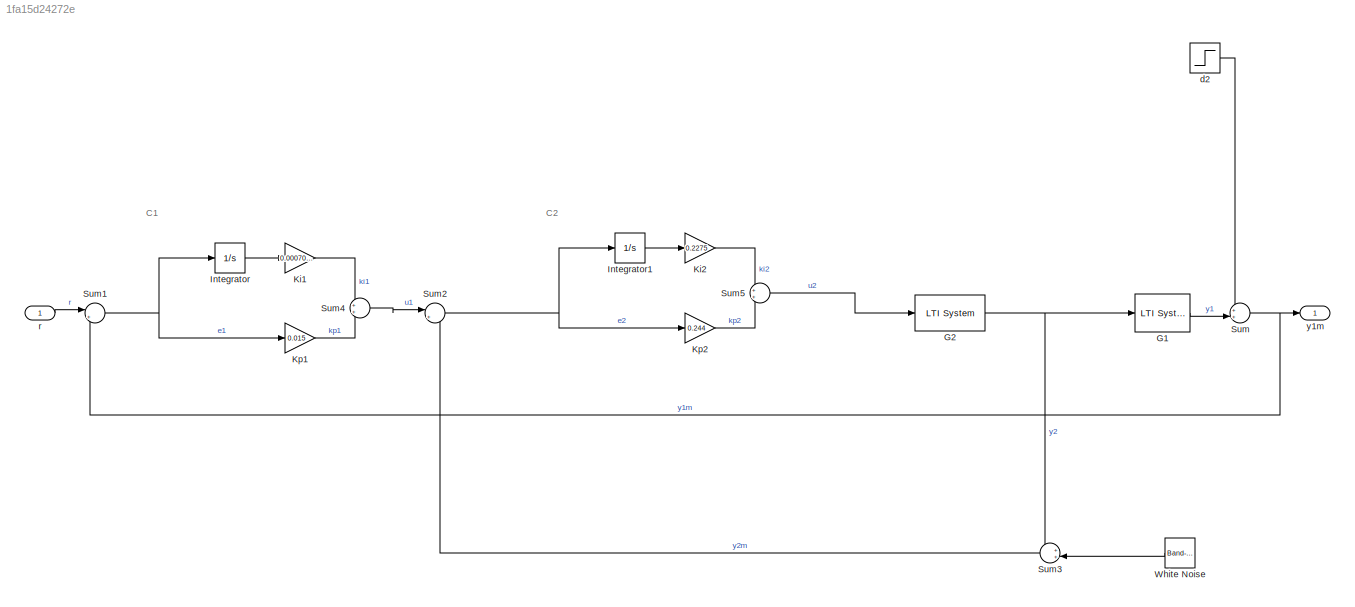
MODEL slx_1fa15d24272e
KIND model
CONFIG AbsTol = auto
CONFIG EnableMultiTasking = on
CONFIG FixedStep = auto
CONFIG MaxStep = auto
CONFIG MinStep = auto
CONFIG PreLoadFcn = Kp2 = 1.4817;\nKi2 = 4.7555;\nKp1 = 0.1575;\nKi1 = 0.042;
CONFIG RelTol = 1e-3
CONFIG SampleTimeConstraint = Unconstrained
CONFIG Solver = ode45
CONFIG SolverName = ode45
CONFIG StartTime = 0.0
CONFIG StopTime = tspan(end)
WORKSPACE source: mxarray member
WORKSPACE C1: pidstd (value not decoded)
WORKSPACE C2: pidstd (value not decoded)
WORKSPACE G1: object (value not decoded)
WORKSPACE G2: object (value not decoded)
BLOCK [Reference] G1  REF=cstblocks/LTI System
  Ports = [1, 1]
  SourceBlock = cstblocks/LTI System
  SourceProductBaseCode = CT
  SourceType = LTI Block
BLOCK [Reference] G2  REF=cstblocks/LTI System
  Ports = [1, 1]
  SourceBlock = cstblocks/LTI System
  SourceProductBaseCode = CT
  SourceType = LTI Block
BLOCK [Integrator] Integrator
  Ports = [1, 1]
BLOCK [Integrator] Integrator1
  Ports = [1, 1]
BLOCK [Gain] Ki1
  Gain = 0.00070312
BLOCK [Gain] Ki2
  Gain = 0.2275
BLOCK [Gain] Kp1
  Gain = 0.015
BLOCK [Gain] Kp2
  Gain = 0.244
BLOCK [Sum] Sum
  Inputs = ++|
  Ports = [2, 1]
BLOCK [Sum] Sum1
  Inputs = |+-
  Ports = [2, 1]
BLOCK [Sum] Sum2
  Inputs = |+-
  Ports = [2, 1]
BLOCK [Sum] Sum3
  Inputs = ++|
  Ports = [2, 1]
BLOCK [Sum] Sum4
  Ports = [2, 1]
BLOCK [Sum] Sum5
  Ports = [2, 1]
BLOCK [Reference] White Noise  REF=simulink/Sources/Band-Limited
White Noise
  Ports = [0, 1]
  SourceBlock = simulink/Sources/Band-Limited\nWhite Noise
  SourceProductBaseCode = SL
  SourceType = Band-Limited White Noise.
BLOCK [Step] d2
  After = 0.25
  SampleTime = 0
  Time = 20
BLOCK [Inport] r
BLOCK [Outport] y1m
ANNOTATION (root): C1
ANNOTATION (root): C2
LINE G1:1 -> Sum:2
NET G2:1 -> G1:1, Sum3:1
LINE Integrator1:1 -> Ki2:1
LINE Integrator:1 -> Ki1:1
LINE Ki1:1 -> Sum4:1
LINE Ki2:1 -> Sum5:1
LINE Kp1:1 -> Sum4:2
LINE Kp2:1 -> Sum5:2
NET Sum1:1 -> Integrator:1, Kp1:1
NET Sum2:1 -> Integrator1:1, Kp2:1
LINE Sum3:1 -> Sum2:2
LINE Sum4:1 -> Sum2:1
LINE Sum5:1 -> G2:1
NET Sum:1 -> Sum1:2, y1m:1
LINE White Noise:1 -> Sum3:2
LINE d2:1 -> Sum:1
LINE r:1 -> Sum1:1
note: NET lines group one-source signal fan-out (src -> all destinations, sorted); 1:1 wires keep LINE
